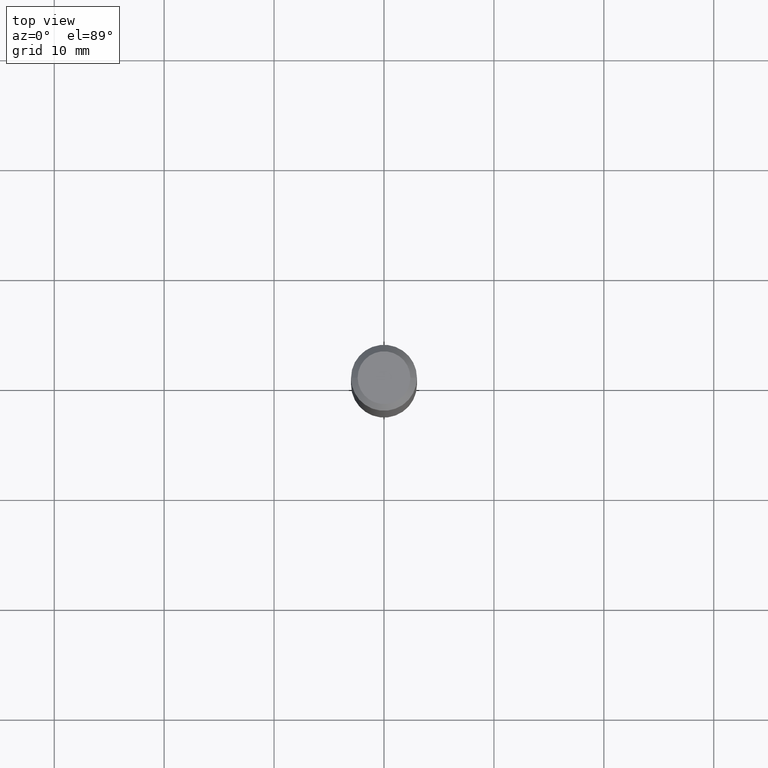
[diagram: clean part render]
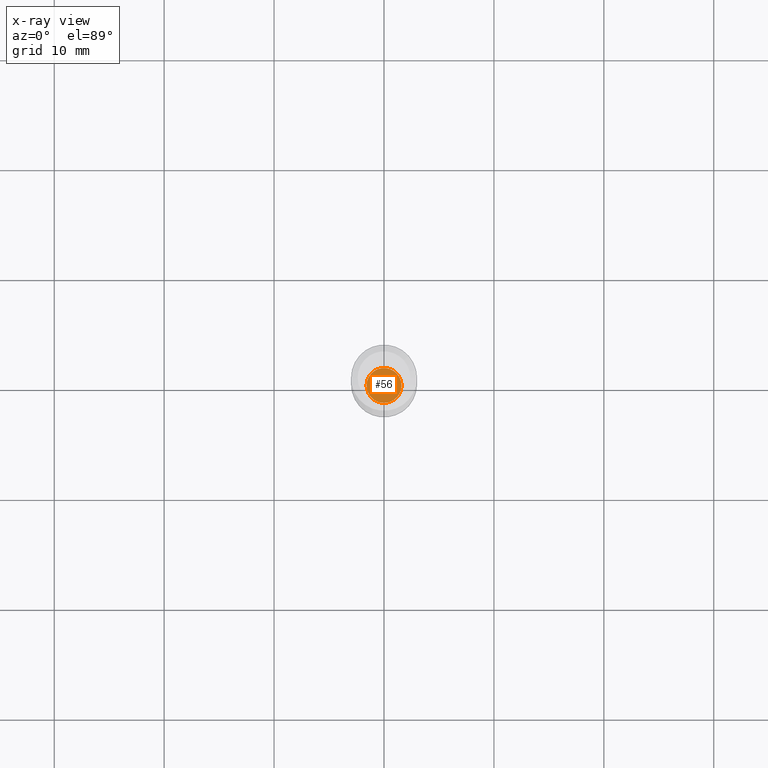
[diagram: x-ray — body ghosted, one internal face saturated and labeled with its STEP entity id]
A machine part, top view, then the same camera in x-ray: the body is ghosted and one INTERNAL B-rep face — a face not visible from any outside direction — is saturated and labeled: STEP entity #56.
In plain terms, the highlighted planar face has unit normal (-0, 0, 1).
Its self-contained STEP definition (entity closure, byte-faithful):
#1 = CARTESIAN_POINT ( 'NONE',  ( 3.966550403632290721E-29, -5.663182731603580825E-15, -1.621999999999999886 ) ) ;
#15 = CIRCLE ( 'NONE', #410, 0.06250000000000000000 ) ;
#35 = DIRECTION ( 'NONE',  ( -2.438088387897960049E-29, 3.491481338843145188E-15, 1.000000000000000000 ) ) ;
#56 = ADVANCED_FACE ( 'NONE', ( #109 ), #288, .F. ) ;
#79 = CIRCLE ( 'NONE', #90, 0.06250000000000000000 ) ;
#90 = AXIS2_PLACEMENT_3D ( 'NONE', #241, #278, #130 ) ;
#98 = ORIENTED_EDGE ( 'NONE', *, *, #376, .F. ) ;
#100 = VERTEX_POINT ( 'NONE', #177 ) ;
#107 = DIRECTION ( 'NONE',  ( 1.000000000000000000, -6.982962677686265922E-15, 4.876176775795935793E-29 ) ) ;
#109 = FACE_OUTER_BOUND ( 'NONE', #330, .T. ) ;
#124 = EDGE_CURVE ( 'NONE', #100, #131, #15, .T. ) ;
#130 = DIRECTION ( 'NONE',  ( 1.000000000000000000, -6.982962677686262766E-15, 0.000000000000000000 ) ) ;
#131 = VERTEX_POINT ( 'NONE', #303 ) ;
#151 = DIRECTION ( 'NONE',  ( -2.445468806185136597E-29, 3.491481338843145583E-15, 1.000000000000000000 ) ) ;
#177 = CARTESIAN_POINT ( 'NONE',  ( -0.06250000000000000000, -5.216444294579407796E-15, -1.621999999999999886 ) ) ;
#241 = CARTESIAN_POINT ( 'NONE',  ( 3.966550403632290721E-29, -5.663182731603580825E-15, -1.621999999999999886 ) ) ;
#261 = DIRECTION ( 'NONE',  ( 1.000000000000000000, -6.982962677686262766E-15, 0.000000000000000000 ) ) ;
#277 = ORIENTED_EDGE ( 'NONE', *, *, #124, .F. ) ;
#278 = DIRECTION ( 'NONE',  ( -2.445468806185136597E-29, 3.491481338843145583E-15, 1.000000000000000000 ) ) ;
#288 = PLANE ( 'NONE',  #361 ) ;
#303 = CARTESIAN_POINT ( 'NONE',  ( 0.06250000000000000000, -6.099617898958972494E-15, -1.621999999999999886 ) ) ;
#329 = CARTESIAN_POINT ( 'NONE',  ( 3.966550403632290721E-29, -5.663182731603580825E-15, -1.621999999999999886 ) ) ;
#330 = EDGE_LOOP ( 'NONE', ( #98, #277 ) ) ;
#361 = AXIS2_PLACEMENT_3D ( 'NONE', #1, #35, #107 ) ;
#376 = EDGE_CURVE ( 'NONE', #131, #100, #79, .T. ) ;
#410 = AXIS2_PLACEMENT_3D ( 'NONE', #329, #151, #261 ) ;